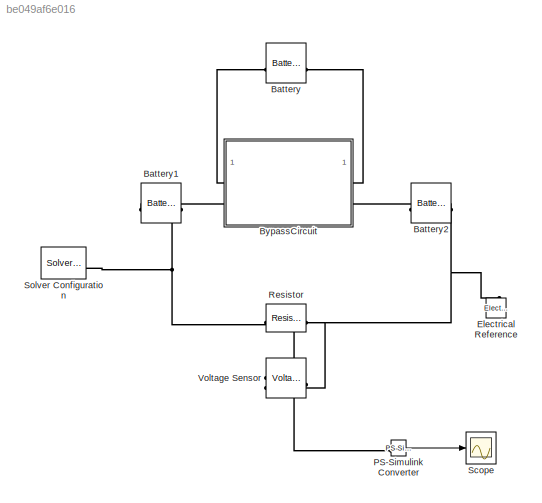
MODEL slx_be049af6e016
KIND model
CONFIG AbsTol = auto
CONFIG EnableMultiTasking = off
CONFIG FixedStep = auto
CONFIG MaxStep = auto
CONFIG MinStep = auto
CONFIG RelTol = 1e-3
CONFIG SampleTimeConstraint = Unconstrained
CONFIG SolverName = VariableStepAuto
CONFIG StartTime = 0.0
CONFIG StopTime = 10.0
BLOCK [Reference] Battery  REF=batteryecm_lib/Battery
  NameLocation = top
  SourceBlock = batteryecm_lib/Battery
  SourceType = Battery
BLOCK [Reference] Battery1  REF=batteryecm_lib/Battery
  NameLocation = top
  SourceBlock = batteryecm_lib/Battery
  SourceType = Battery
BLOCK [Reference] Battery2  REF=batteryecm_lib/Battery
  NameLocation = top
  SourceBlock = batteryecm_lib/Battery
  SourceType = Battery
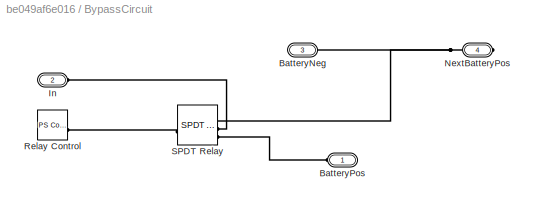
BLOCK [SubSystem] BypassCircuit
BLOCK [PMIOPort] BypassCircuit/BatteryNeg
  Port = 3
  Side = Right
BLOCK [PMIOPort] BypassCircuit/BatteryPos
  Side = Left
BLOCK [PMIOPort] BypassCircuit/In
  Port = 2
  Side = Left
BLOCK [PMIOPort] BypassCircuit/NextBatteryPos
  Port = 4
  Side = Right
BLOCK [Reference] BypassCircuit/Relay Control  REF=fl_lib/Physical Signals/Sources/PS Constant
  SourceBlock = fl_lib/Physical Signals/Sources/PS Constant
  SourceType = PS Constant
BLOCK [Reference] BypassCircuit/SPDT Relay  REF=ee_lib/Switches & Breakers/Relays/SPDT Relay
  SourceBlock = ee_lib/Switches & Breakers/Relays/SPDT Relay
  SourceType = SPDT Relay
BLOCK [Reference] Electrical Reference  REF=fl_lib/Electrical/Electrical Elements/Electrical Reference
  NameLocation = right
  SourceBlock = fl_lib/Electrical/Electrical Elements/Electrical Reference
  SourceType = Electrical Reference
BLOCK [Reference] PS-Simulink Converter  REF=nesl_utility/PS-Simulink
Converter
  SourceBlock = nesl_utility/PS-Simulink\nConverter
  SourceType = PS-Simulink\nConverter
BLOCK [Reference] Resistor  REF=fl_lib/Electrical/Electrical Elements/Resistor
  SourceBlock = fl_lib/Electrical/Electrical Elements/Resistor
  SourceType = Resistor
BLOCK [Scope] Scope
  Floating = off
  NumInputPorts = 1
  ScopeSpecificationString = Simulink.scopes.TimeScopeBlockCfg('CurrentConfiguration', extmgr.ConfigurationSet(extmgr.Configuration('Core','General UI',true),extmgr.Configuration('Core','Source UI',true),extmgr.Configuration('Sources','WiredSimulink',true),extmgr.Configuration('Visuals','Time Domain',true,'SerializedDisplays',{struct('MinYLimReal','13.9999','MaxYLimReal','33.9999','YLabelReal','','MinYLimMag','13.9999','MaxYL...<+1339ch>
BLOCK [Reference] Solver Configuration  REF=nesl_utility/Solver
Configuration
  SourceBlock = nesl_utility/Solver\nConfiguration
  SourceType = Solver\nConfiguration
BLOCK [Reference] Voltage Sensor  REF=fl_lib/Electrical/Electrical Sensors/Voltage Sensor
  LibrarySourceBlock = ee_lib/Sensors &\nTransducers/Voltage Sensor
  NameLocation = top
  SourceBlock = fl_lib/Electrical/Electrical Sensors/Voltage Sensor
  SourceType = Voltage Sensor
LINE PS-Simulink Converter:1 -> Scope:1
PNET net1: Battery1:LConn1 -- Resistor:LConn1 -- Solver Configuration:RConn1 -- Voltage Sensor:LConn1
PLINE Battery1:RConn1 -- BypassCircuit:LConn2
PLINE Battery2:LConn1 -- BypassCircuit:RConn2
PNET net2: Battery2:RConn1 -- Electrical Reference:LConn1 -- Resistor:RConn1 -- Voltage Sensor:RConn2
PLINE Battery:LConn1 -- BypassCircuit:LConn1
PLINE Battery:RConn1 -- BypassCircuit:RConn1
PNET net3: BypassCircuit/BatteryNeg:RConn1 -- BypassCircuit/NextBatteryPos:RConn1 -- BypassCircuit/SPDT Relay:RConn1
PLINE BypassCircuit/BatteryPos:RConn1 -- BypassCircuit/SPDT Relay:RConn3
PLINE BypassCircuit/In:RConn1 -- BypassCircuit/SPDT Relay:RConn2
PLINE BypassCircuit/Relay Control:RConn1 -- BypassCircuit/SPDT Relay:LConn1
PLINE PS-Simulink Converter:LConn1 -- Voltage Sensor:RConn1
note: PNET lines group multi-terminal physical nets as a canonical sorted terminal list (undirected conserving connections); 2-terminal nets keep the pairwise PLINE form
